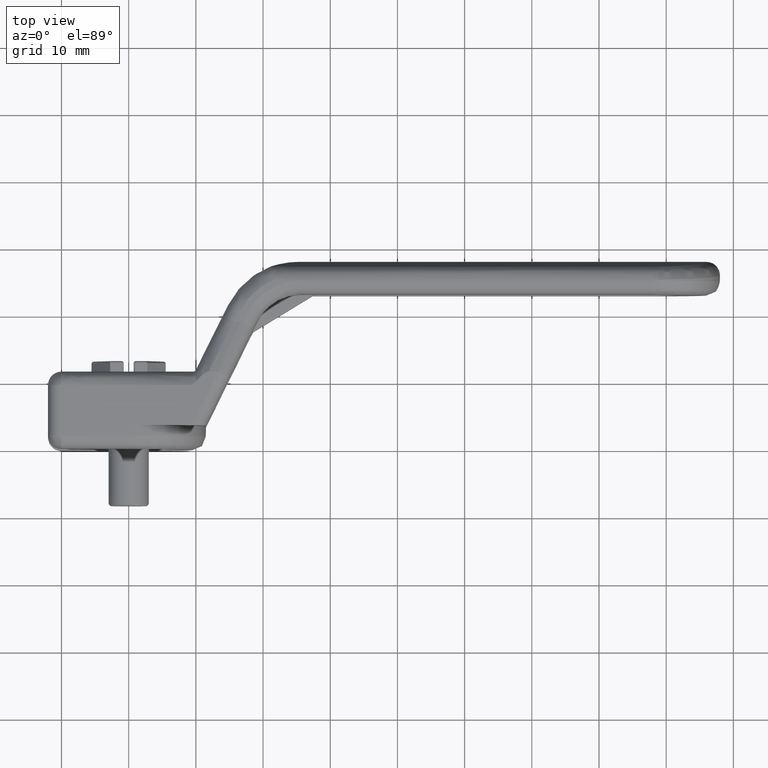
[diagram: clean part render]
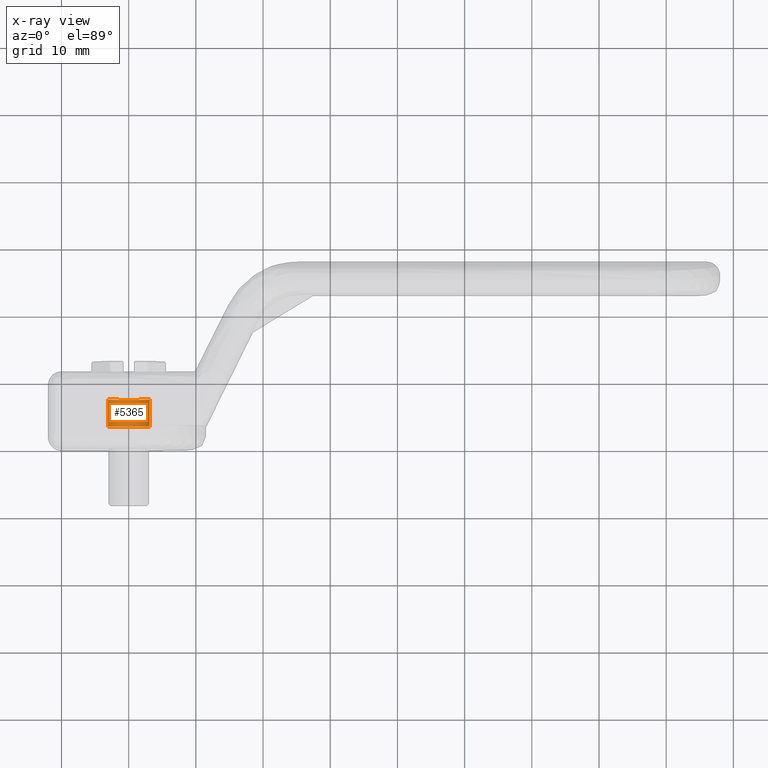
[diagram: x-ray — body ghosted, one internal face saturated and labeled with its STEP entity id]
A machine part, top view, then the same camera in x-ray: the body is ghosted and one INTERNAL B-rep face — a face not visible from any outside direction — is saturated and labeled: STEP entity #5365.
In plain terms, the highlighted face is a freeform B-spline surface patch.
Its self-contained STEP definition (entity closure, byte-faithful):
#5267=CARTESIAN_POINT('',(7.600000553278462,3.090443734572696,-0.243223196756321));
#5268=CARTESIAN_POINT('',(7.600000553278461,2.847220537816376,-3.333666931329018));
#5269=CARTESIAN_POINT('',(7.600000553278462,-0.243223196756321,-3.090443734572696));
#5270=CARTESIAN_POINT('',(7.600000553278461,-3.333666931329018,-2.847220537816376));
#5271=CARTESIAN_POINT('',(7.600000553278462,-3.090443734572696,0.243223196756321));
#5272=CARTESIAN_POINT('',(3.397500154062387,3.090443734572696,-0.243223196756321));
#5273=CARTESIAN_POINT('',(3.397500154062387,2.847220537816376,-3.333666931329018));
#5274=CARTESIAN_POINT('',(3.397500154062387,-0.243223196756321,-3.090443734572696));
#5275=CARTESIAN_POINT('',(3.397500154062387,-3.333666931329018,-2.847220537816376));
#5276=CARTESIAN_POINT('',(3.397500154062387,-3.090443734572696,0.243223196756321));
#5284=(BOUNDED_SURFACE()B_SPLINE_SURFACE(2,1,((#5267,#5272),(#5268,#5273),(#5269,#5274),(#5270,#5275),(#5271,#5276)),.UNSPECIFIED.,.F.,.F.,.U.)B_SPLINE_SURFACE_WITH_KNOTS((3,2,3),(2,2),(0.0,5.136248173426377,10.272496346852760),(0.0,4.202500399216075),.UNSPECIFIED.)GEOMETRIC_REPRESENTATION_ITEM()RATIONAL_B_SPLINE_SURFACE(((1.0,1.0),(0.707106781186548,0.707106781186548),(1.0,1.0),(0.707106781186548,0.707106781186548),(1.0,1.0)))REPRESENTATION_ITEM('')SURFACE());
#5285=CARTESIAN_POINT('',(7.500000543778970,0.0,-3.100000000000000));
#5286=VERTEX_POINT('',#5285);
#5287=CARTESIAN_POINT('',(7.500000543778970,3.090443734559976,-0.243223196917946));
#5288=VERTEX_POINT('',#5287);
#5289=CARTESIAN_POINT('',(7.500000543778970,0.0,-3.100000000000000));
#5290=CARTESIAN_POINT('',(7.500000543778970,2.865610523839782,-3.100000000000000));
#5291=CARTESIAN_POINT('',(7.500000543778970,3.090443734559976,-0.243223196917946));
#5299=(BOUNDED_CURVE()B_SPLINE_CURVE(2,(#5289,#5290,#5291),.UNSPECIFIED.,.F.,.U.)B_SPLINE_CURVE_WITH_KNOTS((3,3),(0.0,0.236331300614836),.UNSPECIFIED.)CURVE()GEOMETRIC_REPRESENTATION_ITEM()RATIONAL_B_SPLINE_CURVE((1.0,0.723120658626204,0.969723356134396))REPRESENTATION_ITEM(''));
#5300=EDGE_CURVE('',#5286,#5288,#5299,.T.);
#5301=ORIENTED_EDGE('',*,*,#5300,.T.);
#5302=CARTESIAN_POINT('',(3.500000163799364,3.090443734559976,-0.243223196917946));
#5303=VERTEX_POINT('',#5302);
#5304=CARTESIAN_POINT('',(7.500000543778970,3.090443734559976,-0.243223196917946));
#5305=CARTESIAN_POINT('',(3.500000163799364,3.090443734559976,-0.243223196917946));
#5306=QUASI_UNIFORM_CURVE('',1,(#5304,#5305),.UNSPECIFIED.,.F.,.U.);
#5307=EDGE_CURVE('',#5288,#5303,#5306,.T.);
#5308=ORIENTED_EDGE('',*,*,#5307,.T.);
#5309=CARTESIAN_POINT('',(3.500000163799365,0.0,-3.100000000000000));
#5310=VERTEX_POINT('',#5309);
#5311=CARTESIAN_POINT('',(3.500000163799365,0.0,-3.100000000000000));
#5312=CARTESIAN_POINT('',(3.500000163799365,2.865610523839782,-3.100000000000000));
#5313=CARTESIAN_POINT('',(3.500000163799365,3.090443734559976,-0.243223196917946));
#5321=(BOUNDED_CURVE()B_SPLINE_CURVE(2,(#5311,#5312,#5313),.UNSPECIFIED.,.F.,.U.)B_SPLINE_CURVE_WITH_KNOTS((3,3),(0.0,0.236331300614836),.UNSPECIFIED.)CURVE()GEOMETRIC_REPRESENTATION_ITEM()RATIONAL_B_SPLINE_CURVE((1.0,0.723120658626204,0.969723356134396))REPRESENTATION_ITEM(''));
#5322=EDGE_CURVE('',#5310,#5303,#5321,.T.);
#5323=ORIENTED_EDGE('',*,*,#5322,.F.);
#5324=CARTESIAN_POINT('',(3.500000163799364,-3.090443734559976,0.243223196917946));
#5325=VERTEX_POINT('',#5324);
#5326=CARTESIAN_POINT('',(3.500000163799364,-3.090443734559976,0.243223196917946));
#5327=CARTESIAN_POINT('',(3.500000163799365,-3.100000000000000,0.121799331886152));
#5328=CARTESIAN_POINT('',(3.500000163799365,-3.100000000000000,0.0));
#5329=CARTESIAN_POINT('',(3.500000163799365,-3.100000000000000,-3.100000000000000));
#5330=CARTESIAN_POINT('',(3.500000163799365,0.0,-3.100000000000000));
#5338=(BOUNDED_CURVE()B_SPLINE_CURVE(2,(#5326,#5327,#5328,#5329,#5330),.UNSPECIFIED.,.F.,.U.)B_SPLINE_CURVE_WITH_KNOTS((3,2,3),(0.736331300614836,0.750000000000000,1.0),.UNSPECIFIED.)CURVE()GEOMETRIC_REPRESENTATION_ITEM()RATIONAL_B_SPLINE_CURVE((0.969723356134396,0.983986122560344,1.0,0.707106781186547,1.0))REPRESENTATION_ITEM(''));
#5339=EDGE_CURVE('',#5325,#5310,#5338,.T.);
#5340=ORIENTED_EDGE('',*,*,#5339,.F.);
#5341=CARTESIAN_POINT('',(7.500000543778971,-3.090443734559976,0.243223196917946));
#5342=VERTEX_POINT('',#5341);
#5343=CARTESIAN_POINT('',(7.500000543778971,-3.090443734559976,0.243223196917946));
#5344=CARTESIAN_POINT('',(3.500000163799364,-3.090443734559976,0.243223196917946));
#5345=QUASI_UNIFORM_CURVE('',1,(#5343,#5344),.UNSPECIFIED.,.F.,.U.);
#5346=EDGE_CURVE('',#5342,#5325,#5345,.T.);
#5347=ORIENTED_EDGE('',*,*,#5346,.F.);
#5348=CARTESIAN_POINT('',(7.500000543778971,-3.090443734559976,0.243223196917946));
#5349=CARTESIAN_POINT('',(7.500000543778970,-3.100000000000000,0.121799331886151));
#5350=CARTESIAN_POINT('',(7.500000543778970,-3.100000000000000,0.0));
#5351=CARTESIAN_POINT('',(7.500000543778970,-3.100000000000000,-3.100000000000000));
#5352=CARTESIAN_POINT('',(7.500000543778970,0.0,-3.100000000000000));
#5360=(BOUNDED_CURVE()B_SPLINE_CURVE(2,(#5348,#5349,#5350,#5351,#5352),.UNSPECIFIED.,.F.,.U.)B_SPLINE_CURVE_WITH_KNOTS((3,2,3),(0.736331300614836,0.750000000000000,1.0),.UNSPECIFIED.)CURVE()GEOMETRIC_REPRESENTATION_ITEM()RATIONAL_B_SPLINE_CURVE((0.969723356134396,0.983986122560344,1.0,0.707106781186547,1.0))REPRESENTATION_ITEM(''));
#5361=EDGE_CURVE('',#5342,#5286,#5360,.T.);
#5362=ORIENTED_EDGE('',*,*,#5361,.T.);
#5363=EDGE_LOOP('',(#5301,#5308,#5323,#5340,#5347,#5362));
#5364=FACE_OUTER_BOUND('',#5363,.T.);
#5365=ADVANCED_FACE('',(#5364),#5284,.F.);